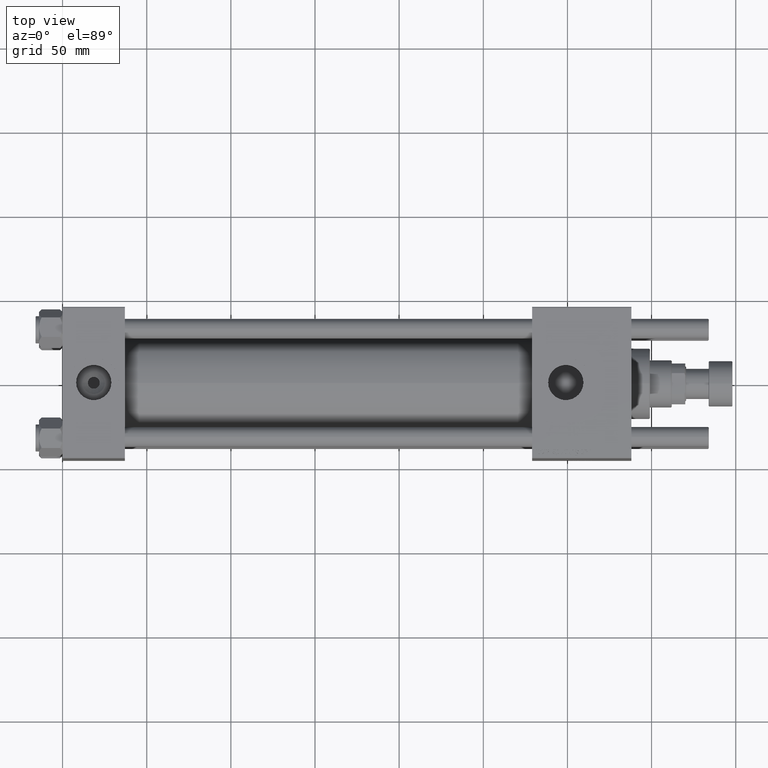
[diagram: clean part render]
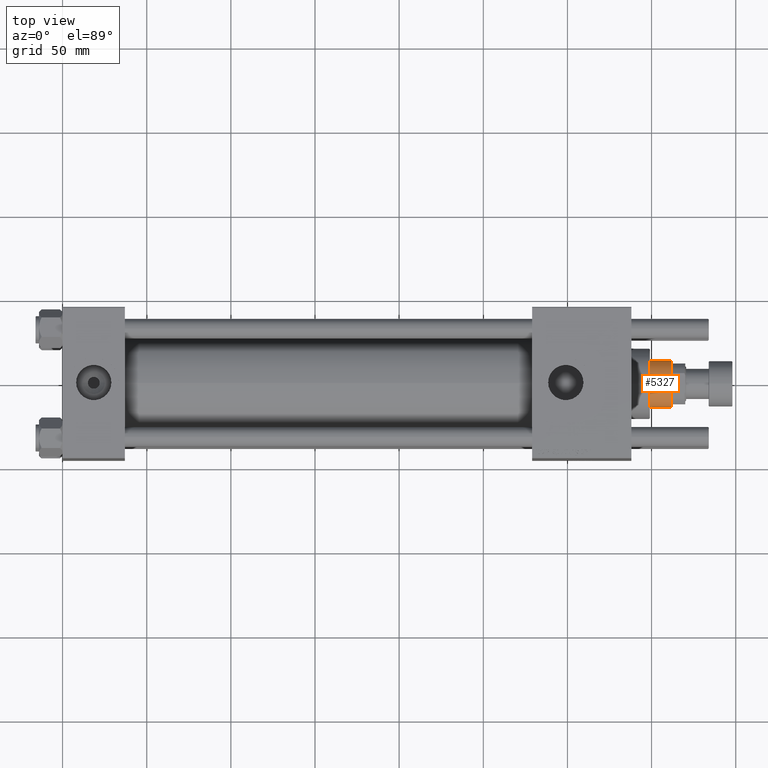
[diagram: same view with one face highlighted and labeled with its STEP entity id]
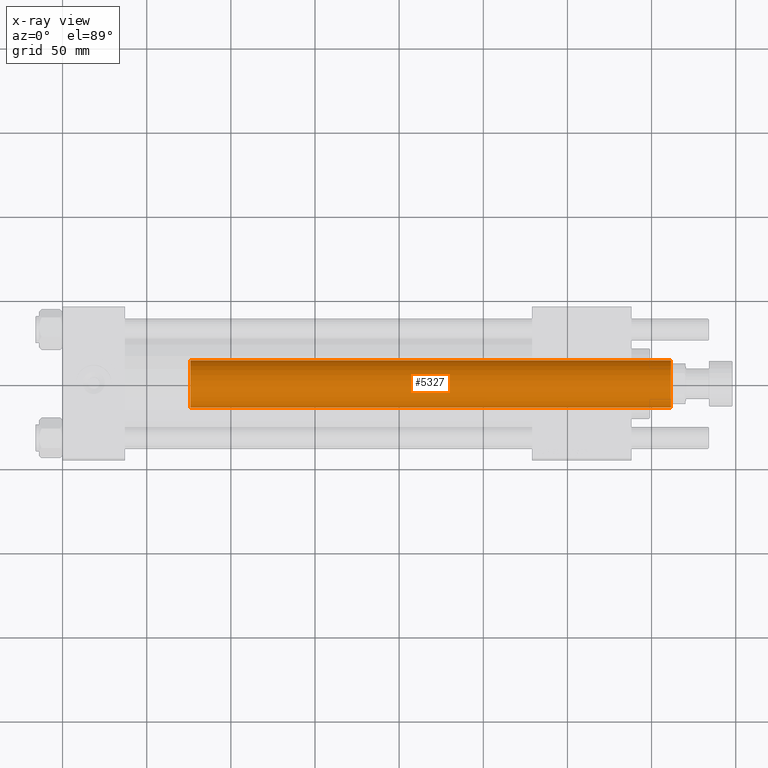
[diagram: x-ray of the same camera — body ghosted, the highlighted face saturated]
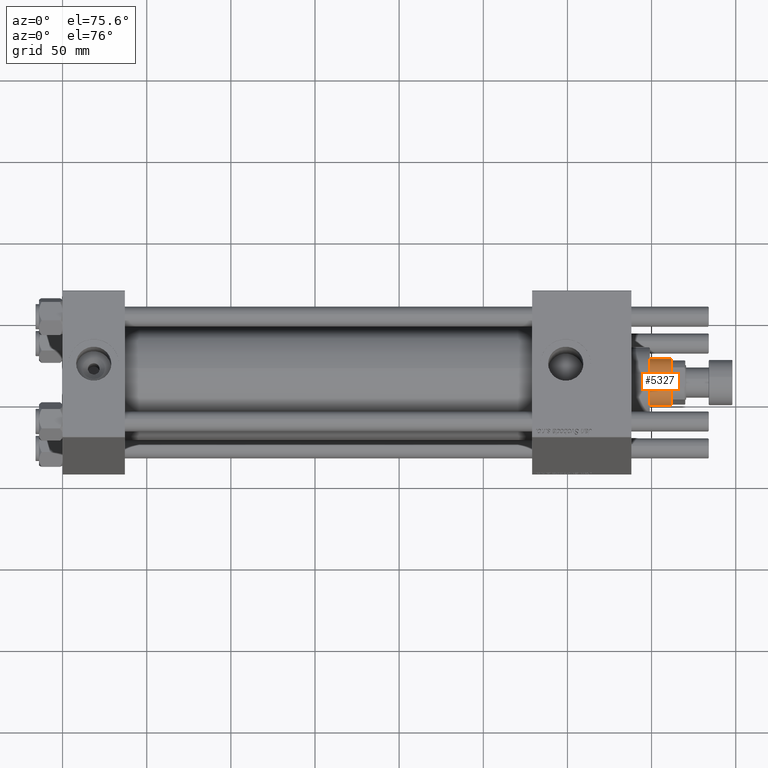
[diagram: same view with one face highlighted and labeled with its STEP entity id]
A machine part, top view. The second image highlights one B-rep face of the part: STEP entity #5327.
The next image is the same camera in x-ray: the body ghosted, the highlighted face saturated — about 0% of this face is hidden behind the body in this view.
A second angle (auxiliary view) of the same face is appended — the face is thin or edge-on in the first view.
In plain terms, the highlighted cylindrical surface (edge-blend (fillet) strip) has radius 14 mm, axis along (-1, 0, 0).
Its self-contained STEP definition (entity closure, byte-faithful):
#2634 = LINE ( 'NONE', #20914, #22336 ) ;
#2761 = CYLINDRICAL_SURFACE ( 'NONE', #51154, 14.00000000000000178 ) ;
#3119 = CARTESIAN_POINT ( 'NONE',  ( 14.00000000000000178, 1.714505518806294835E-15, 324.4999999999999432 ) ) ;
#3226 = DIRECTION ( 'NONE',  ( -0.000000000000000000, -0.000000000000000000, -1.000000000000000000 ) ) ;
#5213 = CIRCLE ( 'NONE', #49231, 14.00000000000000178 ) ;
#5253 = EDGE_CURVE ( 'NONE', #46102, #39547, #5213, .T. ) ;
#5327 = ADVANCED_FACE ( 'NONE', ( #30017 ), #2761, .T. ) ;
#12431 = ORIENTED_EDGE ( 'NONE', *, *, #55172, .T. ) ;
#14210 = AXIS2_PLACEMENT_3D ( 'NONE', #19157, #14364, #32654 ) ;
#14364 = DIRECTION ( 'NONE',  ( 0.000000000000000000, 0.000000000000000000, 1.000000000000000000 ) ) ;
#17436 = EDGE_CURVE ( 'NONE', #39547, #26887, #20842, .T. ) ;
#17828 = VERTEX_POINT ( 'NONE', #46997 ) ;
#19157 = CARTESIAN_POINT ( 'NONE',  ( 0.000000000000000000, 0.000000000000000000, 39.00000000000000000 ) ) ;
#20842 = LINE ( 'NONE', #21142, #52649 ) ;
#20914 = CARTESIAN_POINT ( 'NONE',  ( 14.00000000000000178, 1.714505518806294835E-15, 324.9999999999999432 ) ) ;
#21142 = CARTESIAN_POINT ( 'NONE',  ( -14.00000000000000178, 0.000000000000000000, 324.9999999999999432 ) ) ;
#22336 = VECTOR ( 'NONE', #3226, 1000.000000000000000 ) ;
#22803 = DIRECTION ( 'NONE',  ( -1.000000000000000000, 0.000000000000000000, 0.000000000000000000 ) ) ;
#26887 = VERTEX_POINT ( 'NONE', #38929 ) ;
#28943 = EDGE_CURVE ( 'NONE', #46102, #17828, #2634, .T. ) ;
#30017 = FACE_OUTER_BOUND ( 'NONE', #47023, .T. ) ;
#30170 = ORIENTED_EDGE ( 'NONE', *, *, #17436, .T. ) ;
#32480 = ORIENTED_EDGE ( 'NONE', *, *, #5253, .T. ) ;
#32654 = DIRECTION ( 'NONE',  ( 1.000000000000000000, 0.000000000000000000, 0.000000000000000000 ) ) ;
#33654 = CARTESIAN_POINT ( 'NONE',  ( 0.000000000000000000, 0.000000000000000000, 324.4999999999999432 ) ) ;
#34235 = DIRECTION ( 'NONE',  ( 1.000000000000000000, 0.000000000000000000, 0.000000000000000000 ) ) ;
#35443 = CARTESIAN_POINT ( 'NONE',  ( -14.00000000000000178, 0.000000000000000000, 324.4999999999999432 ) ) ;
#37185 = DIRECTION ( 'NONE',  ( -0.000000000000000000, -0.000000000000000000, -1.000000000000000000 ) ) ;
#38929 = CARTESIAN_POINT ( 'NONE',  ( -14.00000000000000178, 0.000000000000000000, 39.00000000000000000 ) ) ;
#39547 = VERTEX_POINT ( 'NONE', #35443 ) ;
#46102 = VERTEX_POINT ( 'NONE', #3119 ) ;
#46997 = CARTESIAN_POINT ( 'NONE',  ( 14.00000000000000178, 1.714505518806294835E-15, 39.00000000000000000 ) ) ;
#47023 = EDGE_LOOP ( 'NONE', ( #58275, #32480, #30170, #12431 ) ) ;
#48580 = CARTESIAN_POINT ( 'NONE',  ( 0.000000000000000000, 0.000000000000000000, 324.9999999999999432 ) ) ;
#49231 = AXIS2_PLACEMENT_3D ( 'NONE', #33654, #56702, #34235 ) ;
#51154 = AXIS2_PLACEMENT_3D ( 'NONE', #48580, #37185, #22803 ) ;
#52649 = VECTOR ( 'NONE', #57394, 1000.000000000000000 ) ;
#55172 = EDGE_CURVE ( 'NONE', #26887, #17828, #58230, .T. ) ;
#56702 = DIRECTION ( 'NONE',  ( 0.000000000000000000, 0.000000000000000000, -1.000000000000000000 ) ) ;
#57394 = DIRECTION ( 'NONE',  ( -0.000000000000000000, -0.000000000000000000, -1.000000000000000000 ) ) ;
#58230 = CIRCLE ( 'NONE', #14210, 14.00000000000000178 ) ;
#58275 = ORIENTED_EDGE ( 'NONE', *, *, #28943, .F. ) ;